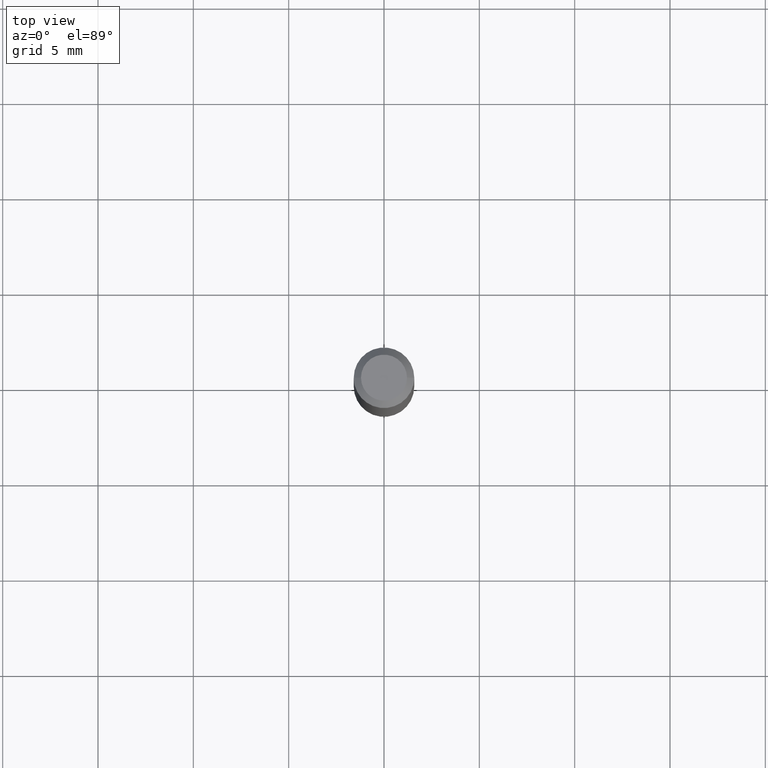
[diagram: clean part render]
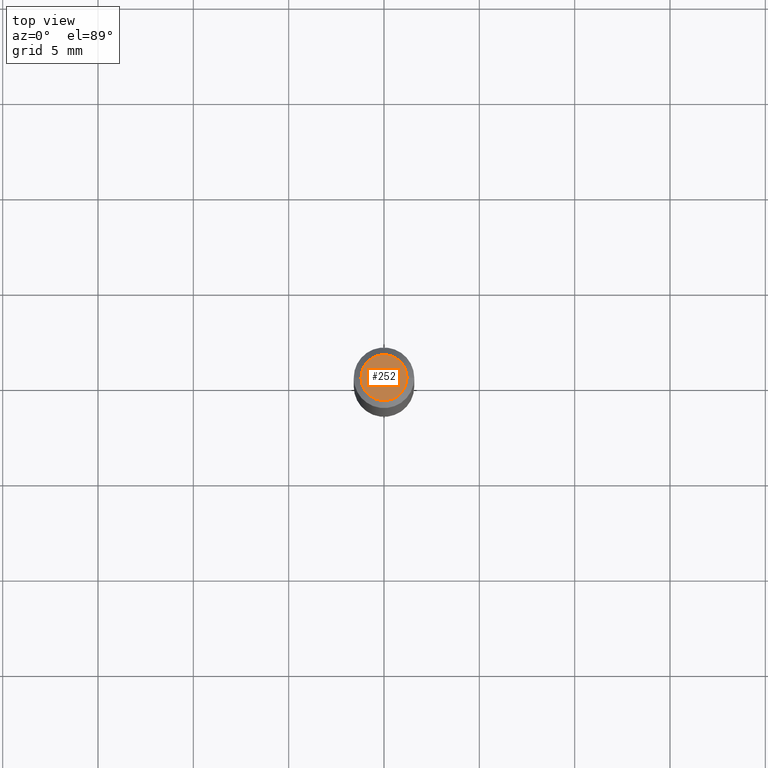
[diagram: same view with one face highlighted and labeled with its STEP entity id]
A machine part, top view. The second image highlights one B-rep face of the part: STEP entity #252.
In plain terms, the highlighted planar face has unit normal (0, -0, -1).
Its self-contained STEP definition (entity closure, byte-faithful):
#26 = EDGE_CURVE ( 'NONE', #140, #40, #233, .T. ) ;
#28 = PLANE ( 'NONE',  #275 ) ;
#33 = EDGE_LOOP ( 'NONE', ( #340, #401 ) ) ;
#34 = AXIS2_PLACEMENT_3D ( 'NONE', #150, #113, #264 ) ;
#40 = VERTEX_POINT ( 'NONE', #187 ) ;
#104 = DIRECTION ( 'NONE',  ( -2.445468806185136597E-29, 3.491481338843145583E-15, 1.000000000000000000 ) ) ;
#113 = DIRECTION ( 'NONE',  ( -2.445468806185136597E-29, 3.491481338843145583E-15, 1.000000000000000000 ) ) ;
#136 = DIRECTION ( 'NONE',  ( 1.000000000000000000, -6.982962677686267499E-15, 4.852736867747366768E-29 ) ) ;
#139 = FACE_OUTER_BOUND ( 'NONE', #33, .T. ) ;
#140 = VERTEX_POINT ( 'NONE', #311 ) ;
#150 = CARTESIAN_POINT ( 'NONE',  ( -6.039856226162563845E-45, 8.623313963198305035E-31, 2.469815280770058928E-16 ) ) ;
#187 = CARTESIAN_POINT ( 'NONE',  ( 0.04749999999999999362, -4.035134999187574186E-16, 2.469815280770084566E-16 ) ) ;
#233 = CIRCLE ( 'NONE', #34, 0.04749999999999999362 ) ;
#247 = CIRCLE ( 'NONE', #313, 0.04749999999999999362 ) ;
#252 = ADVANCED_FACE ( 'NONE', ( #139 ), #28, .F. ) ;
#264 = DIRECTION ( 'NONE',  ( 1.000000000000000000, -6.982962677686267499E-15, 4.852736867747366768E-29 ) ) ;
#275 = AXIS2_PLACEMENT_3D ( 'NONE', #362, #428, #389 ) ;
#311 = CARTESIAN_POINT ( 'NONE',  ( -0.04749999999999999362, 3.578768372314215436E-16, 2.469815280770034769E-16 ) ) ;
#313 = AXIS2_PLACEMENT_3D ( 'NONE', #462, #104, #136 ) ;
#319 = EDGE_CURVE ( 'NONE', #40, #140, #247, .T. ) ;
#340 = ORIENTED_EDGE ( 'NONE', *, *, #26, .T. ) ;
#362 = CARTESIAN_POINT ( 'NONE',  ( 3.316907271900976096E-16, 0.04749999999999999362, -4.235459955654645622E-17 ) ) ;
#389 = DIRECTION ( 'NONE',  ( -1.000000000000000000, 6.982962677686265922E-15, -4.876176775795935793E-29 ) ) ;
#401 = ORIENTED_EDGE ( 'NONE', *, *, #319, .T. ) ;
#428 = DIRECTION ( 'NONE',  ( 2.438088387897960049E-29, -3.491481338843145188E-15, -1.000000000000000000 ) ) ;
#462 = CARTESIAN_POINT ( 'NONE',  ( -6.039856226162563845E-45, 8.623313963198305035E-31, 2.469815280770058928E-16 ) ) ;